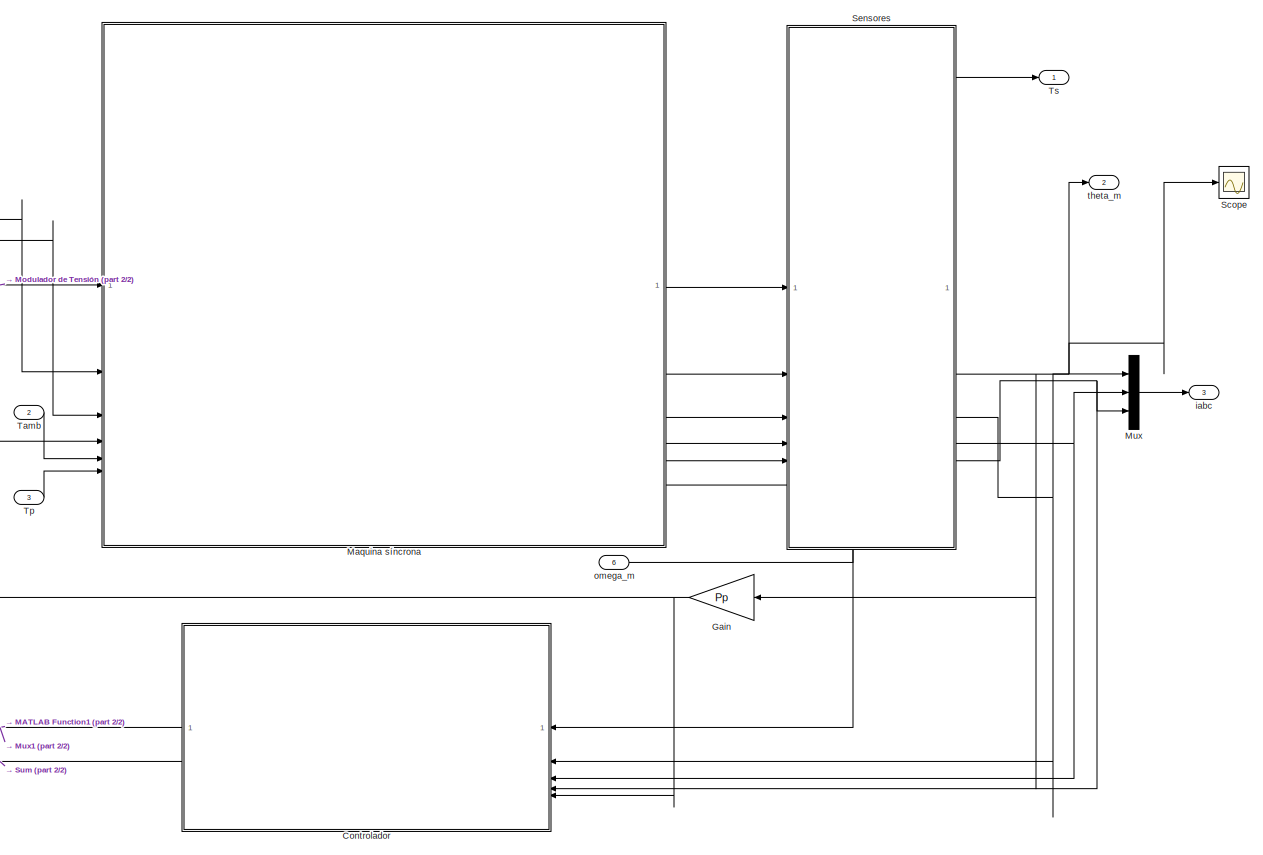
[diagram: root canvas - part 1/2, right side, full height]
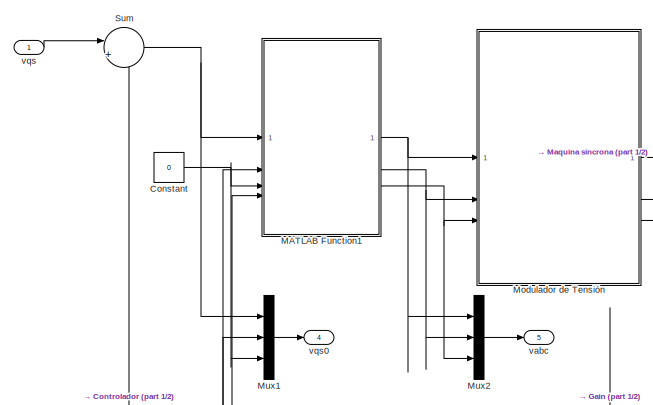
[diagram: root canvas - part 2/2, top left region]
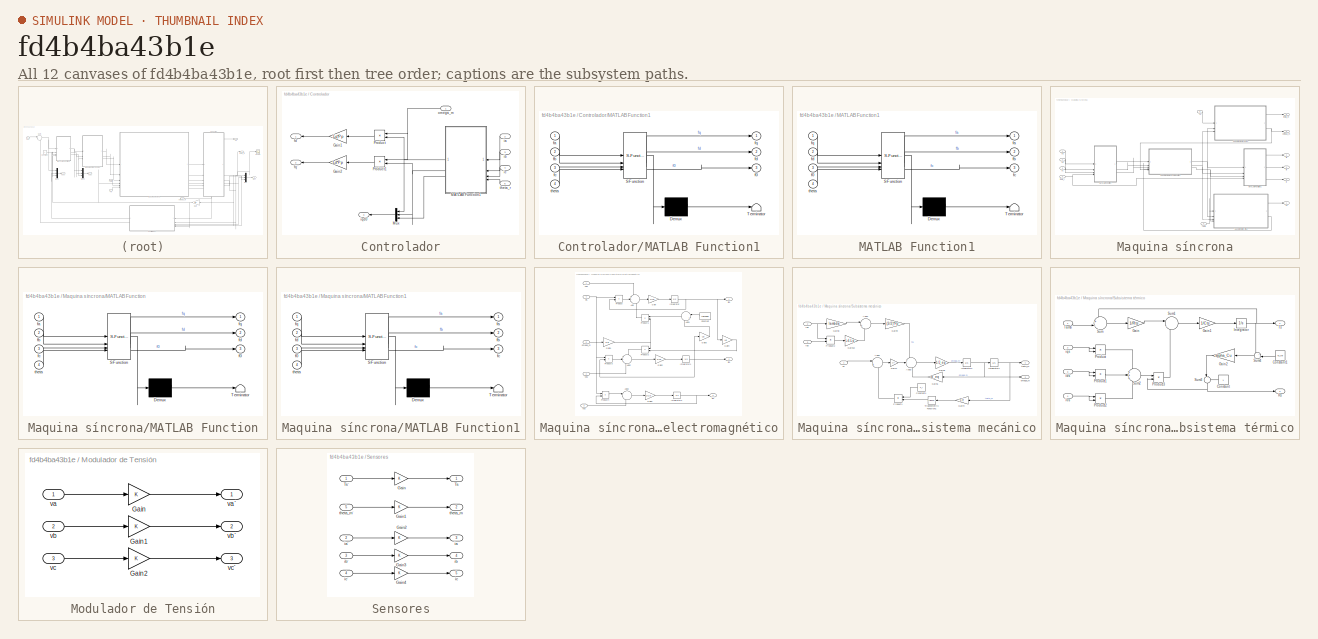
[diagram: thumbnail index - all 12 canvases of the model, root first then tree order]
MODEL slx_fd4b4ba43b1e
KIND model
CONFIG AbsTol = auto
CONFIG EnableMultiTasking = off
CONFIG FixedStep = auto
CONFIG MaxStep = auto
CONFIG MinStep = auto
CONFIG RelTol = 1e-3
CONFIG SampleTimeConstraint = Unconstrained
CONFIG SolverName = VariableStepAuto
CONFIG StartTime = 0.0
CONFIG StopTime = 10.0
WORKSPACE source: external: MAT-File  (data not in archive)
BLOCK [Constant] Constant
  Value = 0
BLOCK [SubSystem] Controlador
BLOCK [Gain] Controlador/Gain1
  Gain = -Lq*Pp
BLOCK [Gain] Controlador/Gain2
  Gain = Ld*Pp
BLOCK [SubSystem] Controlador/MATLAB Function1
  ErrorFcn = Stateflow.Translate.translate
  LibrarySourceBlock = simulink/User-Defined\nFunctions/MATLAB Function
  PermitHierarchicalResolution = ExplicitOnly
  SFBlockType = MATLAB Function
  TreatAsAtomicUnit = on
BLOCK [Demux] Controlador/MATLAB Function1/ Demux 
  Outputs = 1
BLOCK [S-Function] Controlador/MATLAB Function1/ SFunction 
  EnableBusSupport = on
  FunctionName = sf_sfun
  PortCounts = [4 4]
  SFcnIsStateOwnerBlock = off
  SFunctionDeploymentMode = off
  Tag = Stateflow S-Function 5
BLOCK [Terminator] Controlador/MATLAB Function1/ Terminator 
BLOCK [Outport] Controlador/MATLAB Function1/f0
  Port = 3
BLOCK [Inport] Controlador/MATLAB Function1/fa
BLOCK [Inport] Controlador/MATLAB Function1/fb
  Port = 2
BLOCK [Inport] Controlador/MATLAB Function1/fc
  Port = 3
BLOCK [Outport] Controlador/MATLAB Function1/fd
  Port = 2
BLOCK [Outport] Controlador/MATLAB Function1/fq
BLOCK [Inport] Controlador/MATLAB Function1/theta
  Port = 4
BLOCK [Mux] Controlador/Mux
  DisplayOption = bar
  Inputs = 3
BLOCK [Product] Controlador/Product
BLOCK [Product] Controlador/Product1
BLOCK [Outport] Controlador/fd´
BLOCK [Outport] Controlador/fq´
  Port = 2
BLOCK [Inport] Controlador/ia
  Port = 2
BLOCK [Inport] Controlador/ib
  Port = 3
BLOCK [Inport] Controlador/ic
  Port = 4
BLOCK [Outport] Controlador/iqd0
  Port = 3
BLOCK [Inport] Controlador/omega_m
  NameLocation = top
BLOCK [Inport] Controlador/theta_r
  Port = 5
BLOCK [Gain] Gain
  Gain = Pp
BLOCK [SubSystem] MATLAB Function1
  ErrorFcn = Stateflow.Translate.translate
  LibrarySourceBlock = simulink/User-Defined\nFunctions/MATLAB Function
  PermitHierarchicalResolution = ExplicitOnly
  SFBlockType = MATLAB Function
  TreatAsAtomicUnit = on
BLOCK [Demux] MATLAB Function1/ Demux 
  Outputs = 1
BLOCK [S-Function] MATLAB Function1/ SFunction 
  EnableBusSupport = on
  FunctionName = sf_sfun
  PortCounts = [4 4]
  SFcnIsStateOwnerBlock = off
  SFunctionDeploymentMode = off
  Tag = Stateflow S-Function 3
BLOCK [Terminator] MATLAB Function1/ Terminator 
BLOCK [Inport] MATLAB Function1/f0
  Port = 3
BLOCK [Outport] MATLAB Function1/fa
BLOCK [Outport] MATLAB Function1/fb
  Port = 2
BLOCK [Outport] MATLAB Function1/fc
  Port = 3
BLOCK [Inport] MATLAB Function1/fd
  Port = 2
BLOCK [Inport] MATLAB Function1/fq
BLOCK [Inport] MATLAB Function1/theta
  Port = 4
BLOCK [SubSystem] Maquina síncrona
  PortSchema = {"entries":[{"content":{"sides":[{"content":{"connectorIds":["In1","In2","In3","In4","In5","In6"]},"type":"ConnectorPlacement.EquallySpacedRectSide","uuid":"548fbf6f-bb54-461c-a3ca-ae13566b19bb"},{"content":{"connectorIds":["Out1","Out2","Out3","Out4","Out5"],"side":"RIGHT"},"type":"ConnectorPlacement.EquallySpacedRectSide","uuid":"c9a1420a-e64d-4e02-ad2b-140f5c663a2c"},{"content":{"side":"TOP"},"...<+430ch>
BLOCK [SubSystem] Maquina síncrona/MATLAB Function
  ErrorFcn = Stateflow.Translate.translate
  LibrarySourceBlock = simulink/User-Defined\nFunctions/MATLAB Function
  PermitHierarchicalResolution = ExplicitOnly
  SFBlockType = MATLAB Function
  TreatAsAtomicUnit = on
BLOCK [Demux] Maquina síncrona/MATLAB Function/ Demux 
  Outputs = 1
BLOCK [S-Function] Maquina síncrona/MATLAB Function/ SFunction 
  EnableBusSupport = on
  FunctionName = sf_sfun
  PortCounts = [4 4]
  SFcnIsStateOwnerBlock = off
  SFunctionDeploymentMode = off
  Tag = Stateflow S-Function 2
BLOCK [Terminator] Maquina síncrona/MATLAB Function/ Terminator 
BLOCK [Outport] Maquina síncrona/MATLAB Function/f0
  Port = 3
BLOCK [Inport] Maquina síncrona/MATLAB Function/fa
BLOCK [Inport] Maquina síncrona/MATLAB Function/fb
  Port = 2
BLOCK [Inport] Maquina síncrona/MATLAB Function/fc
  Port = 3
BLOCK [Outport] Maquina síncrona/MATLAB Function/fd
  Port = 2
BLOCK [Outport] Maquina síncrona/MATLAB Function/fq
BLOCK [Inport] Maquina síncrona/MATLAB Function/theta
  Port = 4
BLOCK [SubSystem] Maquina síncrona/MATLAB Function1
  ErrorFcn = Stateflow.Translate.translate
  LibrarySourceBlock = simulink/User-Defined\nFunctions/MATLAB Function
  PermitHierarchicalResolution = ExplicitOnly
  SFBlockType = MATLAB Function
  TreatAsAtomicUnit = on
BLOCK [Demux] Maquina síncrona/MATLAB Function1/ Demux 
  Outputs = 1
BLOCK [S-Function] Maquina síncrona/MATLAB Function1/ SFunction 
  EnableBusSupport = on
  FunctionName = sf_sfun
  PortCounts = [4 4]
  SFcnIsStateOwnerBlock = off
  SFunctionDeploymentMode = off
  Tag = Stateflow S-Function 1
BLOCK [Terminator] Maquina síncrona/MATLAB Function1/ Terminator 
BLOCK [Inport] Maquina síncrona/MATLAB Function1/f0
  Port = 3
BLOCK [Outport] Maquina síncrona/MATLAB Function1/fa
BLOCK [Outport] Maquina síncrona/MATLAB Function1/fb
  Port = 2
BLOCK [Outport] Maquina síncrona/MATLAB Function1/fc
  Port = 3
BLOCK [Inport] Maquina síncrona/MATLAB Function1/fd
  Port = 2
BLOCK [Inport] Maquina síncrona/MATLAB Function1/fq
BLOCK [Inport] Maquina síncrona/MATLAB Function1/theta
  Port = 4
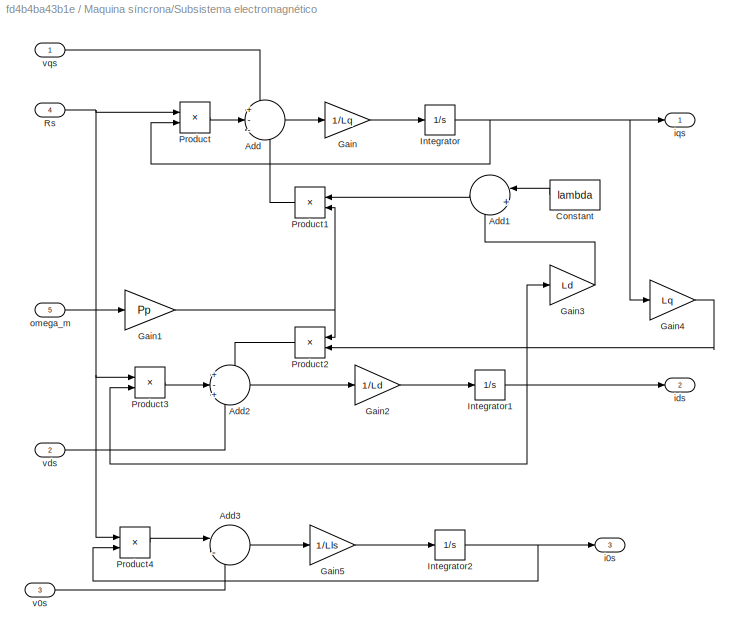
BLOCK [SubSystem] Maquina síncrona/Subsistema electromagnético
BLOCK [Sum] Maquina síncrona/Subsistema electromagnético/Add
  Inputs = +--
BLOCK [Sum] Maquina síncrona/Subsistema electromagnético/Add1
  Inputs = |++
BLOCK [Sum] Maquina síncrona/Subsistema electromagnético/Add2
  Inputs = +-+
BLOCK [Sum] Maquina síncrona/Subsistema electromagnético/Add3
  Inputs = |-+
BLOCK [Constant] Maquina síncrona/Subsistema electromagnético/Constant
  Value = lambda
BLOCK [Gain] Maquina síncrona/Subsistema electromagnético/Gain
  Gain = 1/Lq
BLOCK [Gain] Maquina síncrona/Subsistema electromagnético/Gain1
  Gain = Pp
BLOCK [Gain] Maquina síncrona/Subsistema electromagnético/Gain2
  Gain = 1/Ld
BLOCK [Gain] Maquina síncrona/Subsistema electromagnético/Gain3
  Gain = Ld
BLOCK [Gain] Maquina síncrona/Subsistema electromagnético/Gain4
  Gain = Lq
BLOCK [Gain] Maquina síncrona/Subsistema electromagnético/Gain5
  Gain = 1/Lls
BLOCK [Integrator] Maquina síncrona/Subsistema electromagnético/Integrator
BLOCK [Integrator] Maquina síncrona/Subsistema electromagnético/Integrator1
BLOCK [Integrator] Maquina síncrona/Subsistema electromagnético/Integrator2
BLOCK [Product] Maquina síncrona/Subsistema electromagnético/Product
BLOCK [Product] Maquina síncrona/Subsistema electromagnético/Product1
BLOCK [Product] Maquina síncrona/Subsistema electromagnético/Product2
BLOCK [Product] Maquina síncrona/Subsistema electromagnético/Product3
BLOCK [Product] Maquina síncrona/Subsistema electromagnético/Product4
BLOCK [Inport] Maquina síncrona/Subsistema electromagnético/Rs
  Port = 4
BLOCK [Outport] Maquina síncrona/Subsistema electromagnético/i0s
  Port = 3
BLOCK [Outport] Maquina síncrona/Subsistema electromagnético/ids
  Port = 2
BLOCK [Outport] Maquina síncrona/Subsistema electromagnético/iqs
BLOCK [Inport] Maquina síncrona/Subsistema electromagnético/omega_m
  Port = 5
BLOCK [Inport] Maquina síncrona/Subsistema electromagnético/v0s
  Port = 3
BLOCK [Inport] Maquina síncrona/Subsistema electromagnético/vds
  Port = 2
BLOCK [Inport] Maquina síncrona/Subsistema electromagnético/vqs
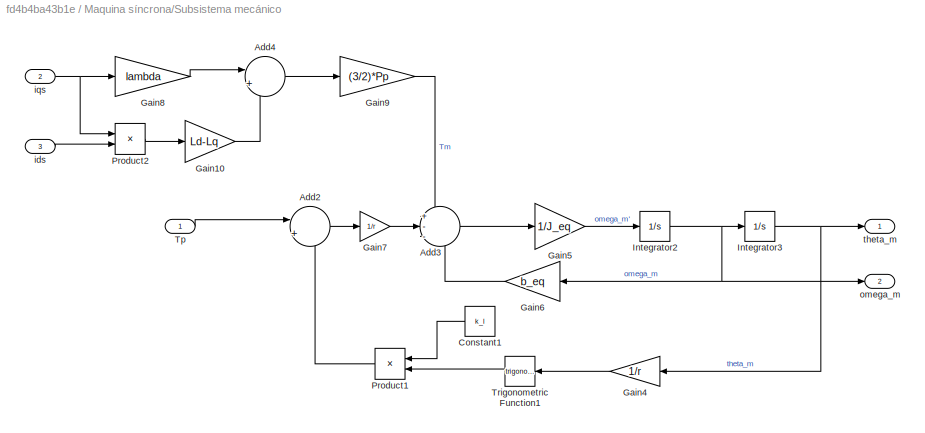
BLOCK [SubSystem] Maquina síncrona/Subsistema mecánico
BLOCK [Sum] Maquina síncrona/Subsistema mecánico/Add2
  Inputs = |++
BLOCK [Sum] Maquina síncrona/Subsistema mecánico/Add3
  Inputs = +--
BLOCK [Sum] Maquina síncrona/Subsistema mecánico/Add4
  Inputs = |++
BLOCK [Constant] Maquina síncrona/Subsistema mecánico/Constant1
  Value = k_l
BLOCK [Gain] Maquina síncrona/Subsistema mecánico/Gain10
  Gain = Ld-Lq
BLOCK [Gain] Maquina síncrona/Subsistema mecánico/Gain4
  Gain = 1/r
BLOCK [Gain] Maquina síncrona/Subsistema mecánico/Gain5
  Gain = 1/J_eq
BLOCK [Gain] Maquina síncrona/Subsistema mecánico/Gain6
  Gain = b_eq
BLOCK [Gain] Maquina síncrona/Subsistema mecánico/Gain7
  Gain = 1/r
BLOCK [Gain] Maquina síncrona/Subsistema mecánico/Gain8
  Gain = lambda
BLOCK [Gain] Maquina síncrona/Subsistema mecánico/Gain9
  Gain = (3/2)*Pp
BLOCK [Integrator] Maquina síncrona/Subsistema mecánico/Integrator2
BLOCK [Integrator] Maquina síncrona/Subsistema mecánico/Integrator3
BLOCK [Product] Maquina síncrona/Subsistema mecánico/Product1
BLOCK [Product] Maquina síncrona/Subsistema mecánico/Product2
BLOCK [Inport] Maquina síncrona/Subsistema mecánico/Tp
BLOCK [Trigonometry] Maquina síncrona/Subsistema mecánico/Trigonometric Function1
BLOCK [Inport] Maquina síncrona/Subsistema mecánico/ids
  Port = 3
BLOCK [Inport] Maquina síncrona/Subsistema mecánico/iqs
  Port = 2
BLOCK [Outport] Maquina síncrona/Subsistema mecánico/omega_m
  Port = 2
BLOCK [Outport] Maquina síncrona/Subsistema mecánico/theta_m
BLOCK [SubSystem] Maquina síncrona/Subsistema térmico
BLOCK [Constant] Maquina síncrona/Subsistema térmico/Constant
BLOCK [Constant] Maquina síncrona/Subsistema térmico/Constant1
  Value = Ts_ref
BLOCK [Gain] Maquina síncrona/Subsistema térmico/Gain
  Gain = 1/Rts
BLOCK [Gain] Maquina síncrona/Subsistema térmico/Gain1
  Gain = 1/Cts
BLOCK [Gain] Maquina síncrona/Subsistema térmico/Gain2
  Gain = alpha_Cu
BLOCK [Integrator] Maquina síncrona/Subsistema térmico/Integrator
BLOCK [Product] Maquina síncrona/Subsistema térmico/Product
BLOCK [Product] Maquina síncrona/Subsistema térmico/Product1
BLOCK [Product] Maquina síncrona/Subsistema térmico/Product2
BLOCK [Product] Maquina síncrona/Subsistema térmico/Product3
BLOCK [Outport] Maquina síncrona/Subsistema térmico/Rs
  Port = 2
BLOCK [Sum] Maquina síncrona/Subsistema térmico/Sum
  Inputs = +-|
BLOCK [Sum] Maquina síncrona/Subsistema térmico/Sum1
  Inputs = |-+
BLOCK [Sum] Maquina síncrona/Subsistema térmico/Sum2
  Inputs = +++
BLOCK [Sum] Maquina síncrona/Subsistema térmico/Sum3
  Inputs = |++
  NameLocation = right
BLOCK [Sum] Maquina síncrona/Subsistema térmico/Sum4
  Inputs = +-|
BLOCK [Inport] Maquina síncrona/Subsistema térmico/Tamb
BLOCK [Outport] Maquina síncrona/Subsistema térmico/Ts
BLOCK [Inport] Maquina síncrona/Subsistema térmico/i0s
  Port = 4
BLOCK [Inport] Maquina síncrona/Subsistema térmico/ids
  Port = 3
BLOCK [Inport] Maquina síncrona/Subsistema térmico/iqs
  Port = 2
BLOCK [Inport] Maquina síncrona/Tamb
  Port = 5
BLOCK [Inport] Maquina síncrona/Tp
  Port = 6
BLOCK [Outport] Maquina síncrona/Ts
BLOCK [Outport] Maquina síncrona/fa
  Port = 2
BLOCK [Outport] Maquina síncrona/fb
  Port = 3
BLOCK [Outport] Maquina síncrona/fc
  Port = 4
BLOCK [Outport] Maquina síncrona/omega_m
  Port = 6
BLOCK [Outport] Maquina síncrona/theta_m
  Port = 5
BLOCK [Inport] Maquina síncrona/theta_r
  Port = 4
BLOCK [Inport] Maquina síncrona/va
BLOCK [Inport] Maquina síncrona/vb
  Port = 2
BLOCK [Inport] Maquina síncrona/vc
  Port = 3
BLOCK [SubSystem] Modulador de Tensión
BLOCK [Gain] Modulador de Tensión/Gain
BLOCK [Gain] Modulador de Tensión/Gain1
BLOCK [Gain] Modulador de Tensión/Gain2
BLOCK [Inport] Modulador de Tensión/va
BLOCK [Outport] Modulador de Tensión/va´
BLOCK [Inport] Modulador de Tensión/vb
  Port = 2
BLOCK [Outport] Modulador de Tensión/vb´
  Port = 2
BLOCK [Inport] Modulador de Tensión/vc
  Port = 3
BLOCK [Outport] Modulador de Tensión/vc´
  Port = 3
BLOCK [Mux] Mux
  DisplayOption = bar
  Inputs = 3
BLOCK [Mux] Mux1
  DisplayOption = bar
  Inputs = 3
BLOCK [Mux] Mux2
  DisplayOption = bar
  Inputs = 3
BLOCK [Scope] Scope
  Floating = off
  NumInputPorts = 1
  ScopeSpecificationString = Simulink.scopes.TimeScopeBlockCfg('CurrentConfiguration', extmgr.ConfigurationSet(extmgr.Configuration('Core','General UI',true),extmgr.Configuration('Core','Source UI',true),extmgr.Configuration('Sources','WiredSimulink',true),extmgr.Configuration('Visuals','Time Domain',true),extmgr.Configuration('Tools','Plot Navigation',true),extmgr.Configuration('Tools','Measurements',true)),'Version','2023a'...<+1ch>
BLOCK [SubSystem] Sensores
BLOCK [Gain] Sensores/Gain
BLOCK [Gain] Sensores/Gain1
BLOCK [Gain] Sensores/Gain2
BLOCK [Gain] Sensores/Gain3
BLOCK [Gain] Sensores/Gain4
BLOCK [Outport] Sensores/Ts
BLOCK [Inport] Sensores/Ts´
BLOCK [Outport] Sensores/ia
  Port = 3
BLOCK [Inport] Sensores/ia´
  Port = 2
BLOCK [Outport] Sensores/ib
  Port = 4
BLOCK [Inport] Sensores/ib´
  Port = 3
BLOCK [Outport] Sensores/ic
  Port = 5
BLOCK [Inport] Sensores/ic´
  Port = 4
BLOCK [Outport] Sensores/theta_m
  Port = 2
BLOCK [Inport] Sensores/theta_m´
  Port = 5
BLOCK [Sum] Sum
  Inputs = |++
BLOCK [Inport] Tamb
  IconDisplay = Signal name
  Port = 2
BLOCK [Inport] Tp
  IconDisplay = Signal name
  Port = 3
BLOCK [Outport] Ts
BLOCK [Outport] iabc
  Port = 3
BLOCK [Outport] omega_m
  Port = 6
BLOCK [Outport] theta_m
  Port = 2
BLOCK [Outport] vabc
  Port = 5
BLOCK [Inport] vqs
  IconDisplay = Signal name
BLOCK [Outport] vqs0
  Port = 4
NET Constant:1 -> MATLAB Function1:3, Mux1:3
LINE Controlador/Gain1:1 -> Controlador/fd´:1
LINE Controlador/Gain2:1 -> Controlador/fq´:1
NET Controlador/MATLAB Function1:1 -> Controlador/Mux:1, Controlador/Product:2
NET Controlador/MATLAB Function1:2 -> Controlador/Mux:2, Controlador/Product1:2
LINE Controlador/MATLAB Function1:3 -> Controlador/Mux:3
LINE Controlador/Mux:1 -> Controlador/iqd0:1
LINE Controlador/Product1:1 -> Controlador/Gain2:1
LINE Controlador/Product:1 -> Controlador/Gain1:1
LINE Controlador/ia:1 -> Controlador/MATLAB Function1:1
LINE Controlador/ib:1 -> Controlador/MATLAB Function1:2
LINE Controlador/ic:1 -> Controlador/MATLAB Function1:3
NET Controlador/omega_m:1 -> Controlador/Product1:1, Controlador/Product:1
LINE Controlador/theta_r:1 -> Controlador/MATLAB Function1:4
NET Controlador:1 -> MATLAB Function1:2, Mux1:2
LINE Controlador:2 -> Sum:2
NET Gain:1 -> Controlador:5, MATLAB Function1:4, Maquina síncrona:4
NET MATLAB Function1:1 -> Modulador de Tensión:1, Mux2:1
NET MATLAB Function1:2 -> Modulador de Tensión:2, Mux2:2
NET MATLAB Function1:3 -> Modulador de Tensión:3, Mux2:3
LINE Maquina síncrona/MATLAB Function1:1 -> Maquina síncrona/fa:1
LINE Maquina síncrona/MATLAB Function1:2 -> Maquina síncrona/fb:1
LINE Maquina síncrona/MATLAB Function1:3 -> Maquina síncrona/fc:1
LINE Maquina síncrona/MATLAB Function:1 -> Maquina síncrona/Subsistema electromagnético:1
LINE Maquina síncrona/MATLAB Function:2 -> Maquina síncrona/Subsistema electromagnético:2
LINE Maquina síncrona/MATLAB Function:3 -> Maquina síncrona/Subsistema electromagnético:3
LINE Maquina síncrona/Subsistema electromagnético/Add1:1 -> Maquina síncrona/Subsistema electromagnético/Product1:1
LINE Maquina síncrona/Subsistema electromagnético/Add2:1 -> Maquina síncrona/Subsistema electromagnético/Gain2:1
LINE Maquina síncrona/Subsistema electromagnético/Add3:1 -> Maquina síncrona/Subsistema electromagnético/Gain5:1
LINE Maquina síncrona/Subsistema electromagnético/Add:1 -> Maquina síncrona/Subsistema electromagnético/Gain:1
LINE Maquina síncrona/Subsistema electromagnético/Constant:1 -> Maquina síncrona/Subsistema electromagnético/Add1:1
NET Maquina síncrona/Subsistema electromagnético/Gain1:1 -> Maquina síncrona/Subsistema electromagnético/Product1:2, Maquina síncrona/Subsistema electromagnético/Product2:1
LINE Maquina síncrona/Subsistema electromagnético/Gain2:1 -> Maquina síncrona/Subsistema electromagnético/Integrator1:1
LINE Maquina síncrona/Subsistema electromagnético/Gain3:1 -> Maquina síncrona/Subsistema electromagnético/Add1:2
LINE Maquina síncrona/Subsistema electromagnético/Gain4:1 -> Maquina síncrona/Subsistema electromagnético/Product2:2
LINE Maquina síncrona/Subsistema electromagnético/Gain5:1 -> Maquina síncrona/Subsistema electromagnético/Integrator2:1
LINE Maquina síncrona/Subsistema electromagnético/Gain:1 -> Maquina síncrona/Subsistema electromagnético/Integrator:1
NET Maquina síncrona/Subsistema electromagnético/Integrator1:1 -> Maquina síncrona/Subsistema electromagnético/Gain3:1, Maquina síncrona/Subsistema electromagnético/Product3:2, Maquina síncrona/Subsistema electromagnético/ids:1
NET Maquina síncrona/Subsistema electromagnético/Integrator2:1 -> Maquina síncrona/Subsistema electromagnético/Product4:2, Maquina síncrona/Subsistema electromagnético/i0s:1
NET Maquina síncrona/Subsistema electromagnético/Integrator:1 -> Maquina síncrona/Subsistema electromagnético/Gain4:1, Maquina síncrona/Subsistema electromagnético/Product:2, Maquina síncrona/Subsistema electromagnético/iqs:1
LINE Maquina síncrona/Subsistema electromagnético/Product1:1 -> Maquina síncrona/Subsistema electromagnético/Add:3
LINE Maquina síncrona/Subsistema electromagnético/Product2:1 -> Maquina síncrona/Subsistema electromagnético/Add2:1
LINE Maquina síncrona/Subsistema electromagnético/Product3:1 -> Maquina síncrona/Subsistema electromagnético/Add2:2
LINE Maquina síncrona/Subsistema electromagnético/Product4:1 -> Maquina síncrona/Subsistema electromagnético/Add3:1
LINE Maquina síncrona/Subsistema electromagnético/Product:1 -> Maquina síncrona/Subsistema electromagnético/Add:2
NET Maquina síncrona/Subsistema electromagnético/Rs:1 -> Maquina síncrona/Subsistema electromagnético/Product3:1, Maquina síncrona/Subsistema electromagnético/Product4:1, Maquina síncrona/Subsistema electromagnético/Product:1
LINE Maquina síncrona/Subsistema electromagnético/omega_m:1 -> Maquina síncrona/Subsistema electromagnético/Gain1:1
LINE Maquina síncrona/Subsistema electromagnético/v0s:1 -> Maquina síncrona/Subsistema electromagnético/Add3:2
LINE Maquina síncrona/Subsistema electromagnético/vds:1 -> Maquina síncrona/Subsistema electromagnético/Add2:3
LINE Maquina síncrona/Subsistema electromagnético/vqs:1 -> Maquina síncrona/Subsistema electromagnético/Add:1
NET Maquina síncrona/Subsistema electromagnético:1 -> Maquina síncrona/MATLAB Function1:1, Maquina síncrona/Subsistema mecánico:2, Maquina síncrona/Subsistema térmico:2
NET Maquina síncrona/Subsistema electromagnético:2 -> Maquina síncrona/MATLAB Function1:2, Maquina síncrona/Subsistema mecánico:3, Maquina síncrona/Subsistema térmico:3
NET Maquina síncrona/Subsistema electromagnético:3 -> Maquina síncrona/MATLAB Function1:3, Maquina síncrona/Subsistema térmico:4
LINE Maquina síncrona/Subsistema mecánico/Add2:1 -> Maquina síncrona/Subsistema mecánico/Gain7:1
LINE Maquina síncrona/Subsistema mecánico/Add3:1 -> Maquina síncrona/Subsistema mecánico/Gain5:1
LINE Maquina síncrona/Subsistema mecánico/Add4:1 -> Maquina síncrona/Subsistema mecánico/Gain9:1
LINE Maquina síncrona/Subsistema mecánico/Constant1:1 -> Maquina síncrona/Subsistema mecánico/Product1:1
LINE Maquina síncrona/Subsistema mecánico/Gain10:1 -> Maquina síncrona/Subsistema mecánico/Add4:2
LINE Maquina síncrona/Subsistema mecánico/Gain4:1 -> Maquina síncrona/Subsistema mecánico/Trigonometric Function1:1
LINE Maquina síncrona/Subsistema mecánico/Gain5:1 -> Maquina síncrona/Subsistema mecánico/Integrator2:1
LINE Maquina síncrona/Subsistema mecánico/Gain6:1 -> Maquina síncrona/Subsistema mecánico/Add3:3
LINE Maquina síncrona/Subsistema mecánico/Gain7:1 -> Maquina síncrona/Subsistema mecánico/Add3:2
LINE Maquina síncrona/Subsistema mecánico/Gain8:1 -> Maquina síncrona/Subsistema mecánico/Add4:1
LINE Maquina síncrona/Subsistema mecánico/Gain9:1 -> Maquina síncrona/Subsistema mecánico/Add3:1
NET Maquina síncrona/Subsistema mecánico/Integrator2:1 -> Maquina síncrona/Subsistema mecánico/Gain6:1, Maquina síncrona/Subsistema mecánico/Integrator3:1, Maquina síncrona/Subsistema mecánico/omega_m:1
NET Maquina síncrona/Subsistema mecánico/Integrator3:1 -> Maquina síncrona/Subsistema mecánico/Gain4:1, Maquina síncrona/Subsistema mecánico/theta_m:1
LINE Maquina síncrona/Subsistema mecánico/Product1:1 -> Maquina síncrona/Subsistema mecánico/Add2:2
LINE Maquina síncrona/Subsistema mecánico/Product2:1 -> Maquina síncrona/Subsistema mecánico/Gain10:1
LINE Maquina síncrona/Subsistema mecánico/Tp:1 -> Maquina síncrona/Subsistema mecánico/Add2:1
LINE Maquina síncrona/Subsistema mecánico/Trigonometric Function1:1 -> Maquina síncrona/Subsistema mecánico/Product1:2
LINE Maquina síncrona/Subsistema mecánico/ids:1 -> Maquina síncrona/Subsistema mecánico/Product2:2
NET Maquina síncrona/Subsistema mecánico/iqs:1 -> Maquina síncrona/Subsistema mecánico/Gain8:1, Maquina síncrona/Subsistema mecánico/Product2:1
LINE Maquina síncrona/Subsistema mecánico:1 -> Maquina síncrona/theta_m:1
NET Maquina síncrona/Subsistema mecánico:2 -> Maquina síncrona/Subsistema electromagnético:5, Maquina síncrona/omega_m:1
LINE Maquina síncrona/Subsistema térmico/Constant1:1 -> Maquina síncrona/Subsistema térmico/Sum4:2
LINE Maquina síncrona/Subsistema térmico/Constant:1 -> Maquina síncrona/Subsistema térmico/Sum3:2
LINE Maquina síncrona/Subsistema térmico/Gain1:1 -> Maquina síncrona/Subsistema térmico/Integrator:1
LINE Maquina síncrona/Subsistema térmico/Gain2:1 -> Maquina síncrona/Subsistema térmico/Sum3:1
LINE Maquina síncrona/Subsistema térmico/Gain:1 -> Maquina síncrona/Subsistema térmico/Sum1:1
NET Maquina síncrona/Subsistema térmico/Integrator:1 -> Maquina síncrona/Subsistema térmico/Sum4:1, Maquina síncrona/Subsistema térmico/Sum:1, Maquina síncrona/Subsistema térmico/Ts:1
LINE Maquina síncrona/Subsistema térmico/Product1:1 -> Maquina síncrona/Subsistema térmico/Sum2:2
LINE Maquina síncrona/Subsistema térmico/Product2:1 -> Maquina síncrona/Subsistema térmico/Sum2:3
LINE Maquina síncrona/Subsistema térmico/Product3:1 -> Maquina síncrona/Subsistema térmico/Sum1:2
LINE Maquina síncrona/Subsistema térmico/Product:1 -> Maquina síncrona/Subsistema térmico/Sum2:1
LINE Maquina síncrona/Subsistema térmico/Sum1:1 -> Maquina síncrona/Subsistema térmico/Gain1:1
LINE Maquina síncrona/Subsistema térmico/Sum2:1 -> Maquina síncrona/Subsistema térmico/Product3:1
NET Maquina síncrona/Subsistema térmico/Sum3:1 -> Maquina síncrona/Subsistema térmico/Product3:2, Maquina síncrona/Subsistema térmico/Rs:1
LINE Maquina síncrona/Subsistema térmico/Sum4:1 -> Maquina síncrona/Subsistema térmico/Gain2:1
LINE Maquina síncrona/Subsistema térmico/Sum:1 -> Maquina síncrona/Subsistema térmico/Gain:1
LINE Maquina síncrona/Subsistema térmico/Tamb:1 -> Maquina síncrona/Subsistema térmico/Sum:2
NET Maquina síncrona/Subsistema térmico/i0s:1 -> Maquina síncrona/Subsistema térmico/Product2:1, Maquina síncrona/Subsistema térmico/Product2:2
NET Maquina síncrona/Subsistema térmico/ids:1 -> Maquina síncrona/Subsistema térmico/Product1:1, Maquina síncrona/Subsistema térmico/Product1:2
NET Maquina síncrona/Subsistema térmico/iqs:1 -> Maquina síncrona/Subsistema térmico/Product:1, Maquina síncrona/Subsistema térmico/Product:2
LINE Maquina síncrona/Subsistema térmico:1 -> Maquina síncrona/Ts:1
LINE Maquina síncrona/Subsistema térmico:2 -> Maquina síncrona/Subsistema electromagnético:4
LINE Maquina síncrona/Tamb:1 -> Maquina síncrona/Subsistema térmico:1
LINE Maquina síncrona/Tp:1 -> Maquina síncrona/Subsistema mecánico:1
NET Maquina síncrona/theta_r:1 -> Maquina síncrona/MATLAB Function1:4, Maquina síncrona/MATLAB Function:4
LINE Maquina síncrona/va:1 -> Maquina síncrona/MATLAB Function:1
LINE Maquina síncrona/vb:1 -> Maquina síncrona/MATLAB Function:2
LINE Maquina síncrona/vc:1 -> Maquina síncrona/MATLAB Function:3
LINE Maquina síncrona:1 -> Sensores:1
LINE Maquina síncrona:2 -> Sensores:2
LINE Maquina síncrona:3 -> Sensores:3
LINE Maquina síncrona:4 -> Sensores:4
LINE Maquina síncrona:5 -> Sensores:5
NET Maquina síncrona:6 -> Controlador:1, omega_m:1
LINE Modulador de Tensión/Gain1:1 -> Modulador de Tensión/vb´:1
LINE Modulador de Tensión/Gain2:1 -> Modulador de Tensión/vc´:1
LINE Modulador de Tensión/Gain:1 -> Modulador de Tensión/va´:1
LINE Modulador de Tensión/va:1 -> Modulador de Tensión/Gain:1
LINE Modulador de Tensión/vb:1 -> Modulador de Tensión/Gain1:1
LINE Modulador de Tensión/vc:1 -> Modulador de Tensión/Gain2:1
LINE Modulador de Tensión:1 -> Maquina síncrona:1
LINE Modulador de Tensión:2 -> Maquina síncrona:2
LINE Modulador de Tensión:3 -> Maquina síncrona:3
LINE Mux1:1 -> vqs0:1
LINE Mux2:1 -> vabc:1
LINE Mux:1 -> iabc:1
LINE Sensores/Gain1:1 -> Sensores/theta_m:1
LINE Sensores/Gain2:1 -> Sensores/ia:1
LINE Sensores/Gain3:1 -> Sensores/ib:1
LINE Sensores/Gain4:1 -> Sensores/ic:1
LINE Sensores/Gain:1 -> Sensores/Ts:1
LINE Sensores/Ts´:1 -> Sensores/Gain:1
LINE Sensores/ia´:1 -> Sensores/Gain2:1
LINE Sensores/ib´:1 -> Sensores/Gain3:1
LINE Sensores/ic´:1 -> Sensores/Gain4:1
LINE Sensores/theta_m´:1 -> Sensores/Gain1:1
LINE Sensores:1 -> Ts:1
NET Sensores:2 -> Gain:1, Scope:1, theta_m:1
NET Sensores:3 -> Controlador:2, Mux:1
NET Sensores:4 -> Controlador:3, Mux:2
NET Sensores:5 -> Controlador:4, Mux:3
NET Sum:1 -> MATLAB Function1:1, Mux1:1
LINE Tamb:1 -> Maquina síncrona:5
LINE Tp:1 -> Maquina síncrona:6
LINE vqs:1 -> Sum:1
note: NET lines group one-source signal fan-out (src -> all destinations, sorted); 1:1 wires keep LINE
CHART Maquina síncrona/MATLAB Function1 states=1 transitions=1
  STATE_LABEL 'eML_blk_kernel()'
  STATE_LABEL 'SCRIPT:\nfunction [fa,fb,fc] = TI_Park(fq,fd,f0,theta)\n\nf = (2/3)*[     cos(theta)              sin(theta)         1;\n           cos(theta - (2*pi)/3)   sin(theta - (2*pi)/3)   1;\n           cos(theta + (2*pi)/3)   sin(theta + (2*pi)/3)   1];\n\nresultados = f*[fq;fd;f0];\nfa = resultados(0);\nfb = resultados(1);\nfc = resultados(2);\n\n'
CHART Maquina síncrona/MATLAB Function states=1 transitions=1
  STATE_LABEL 'eML_blk_kernel()'
  STATE_LABEL 'SCRIPT:\nfunction [fq,fd,f0] = TD_Park(fa,fb,fc,theta)\n\nf = (2/3)*[cos(theta)  cos(theta - (2*pi)/3)   cos(theta + (2*pi)/3);\n           sin(theta)  sin(theta - (2*pi)/3)   sin(theta + (2*pi)/3);\n              1/2              1/2                     1/2         ];\n\nresultados = f*[fa;fb;fc];\nfq = resultados(0);\nfd = resultados(1);\nf0 = resultados(2);\n'
CHART MATLAB Function1 states=1 transitions=1
  STATE_LABEL 'eML_blk_kernel()'
  STATE_LABEL 'SCRIPT:\nfunction [fa,fb,fc] = TI_Park(fq,fd,f0,theta)\n\nf = (2/3)*[     cos(theta)              sin(theta)         1;\n           cos(theta - (2*pi)/3)   sin(theta - (2*pi)/3)   1;\n           cos(theta + (2*pi)/3)   sin(theta + (2*pi)/3)   1];\n\nresultados = f*[fq;fd;f0];\nfa = resultados(0);\nfb = resultados(1);\nfc = resultados(2);\n\n'
CHART Controlador/MATLAB Function1 states=1 transitions=1
  STATE_LABEL 'eML_blk_kernel()'
  STATE_LABEL 'SCRIPT:\nfunction [fq,fd,f0] = TD_Park(fa,fb,fc,theta)\n\nf = (2/3)*[cos(theta)  cos(theta - (2*pi)/3)   cos(theta + (2*pi)/3);\n           sin(theta)  sin(theta - (2*pi)/3)   sin(theta + (2*pi)/3);\n              1/2              1/2                     1/2         ];\n\nresultados = f*[fa;fb;fc];\nfq = resultados(0);\nfd = resultados(1);\nf0 = resultados(2);\n'
CHART  states=0 transitions=0
CHART  states=0 transitions=0
CHART  states=0 transitions=0
CHART  states=0 transitions=0
